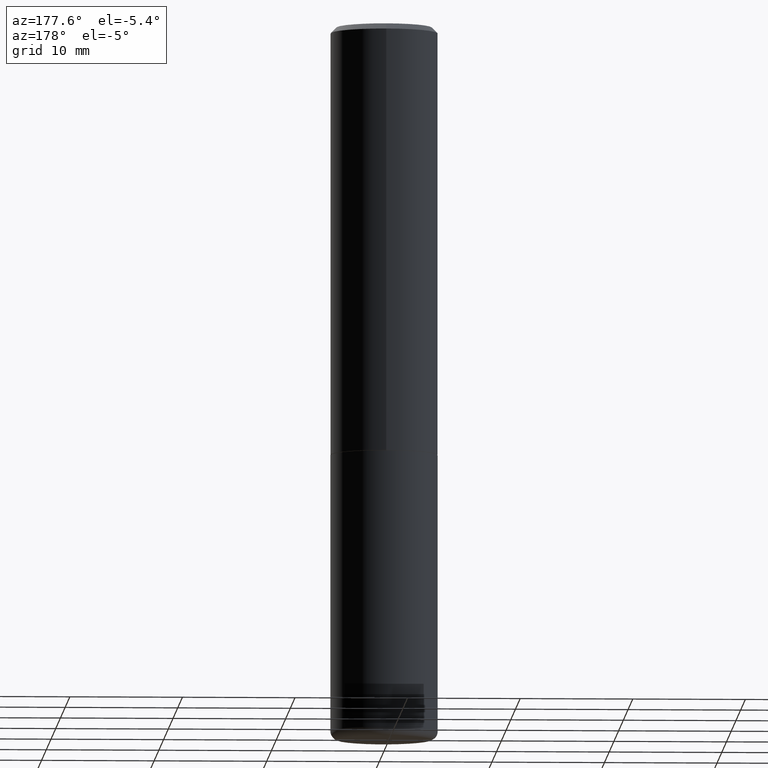
[diagram: clean part render]
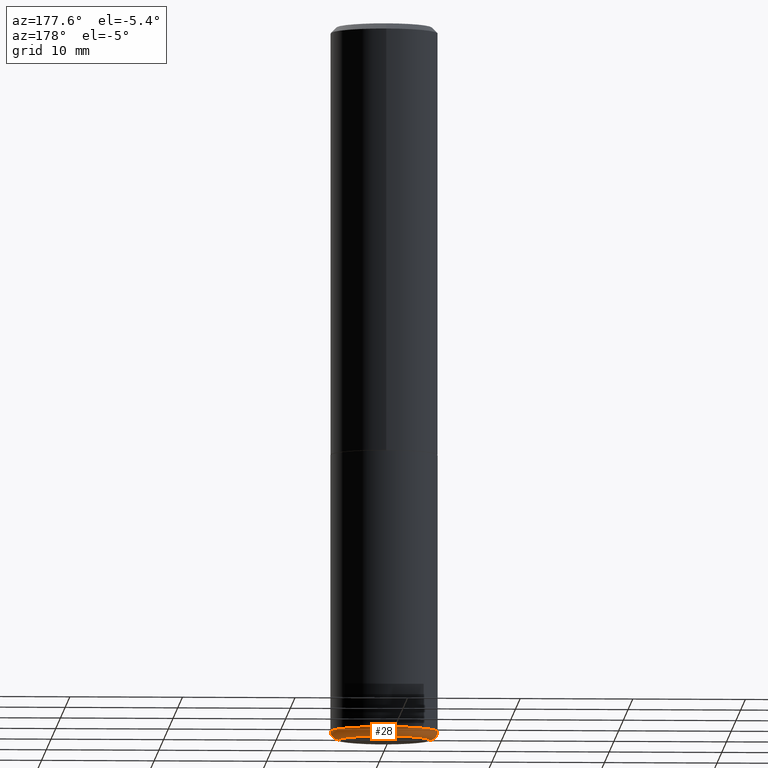
[diagram: same view with one face highlighted and labeled with its STEP entity id]
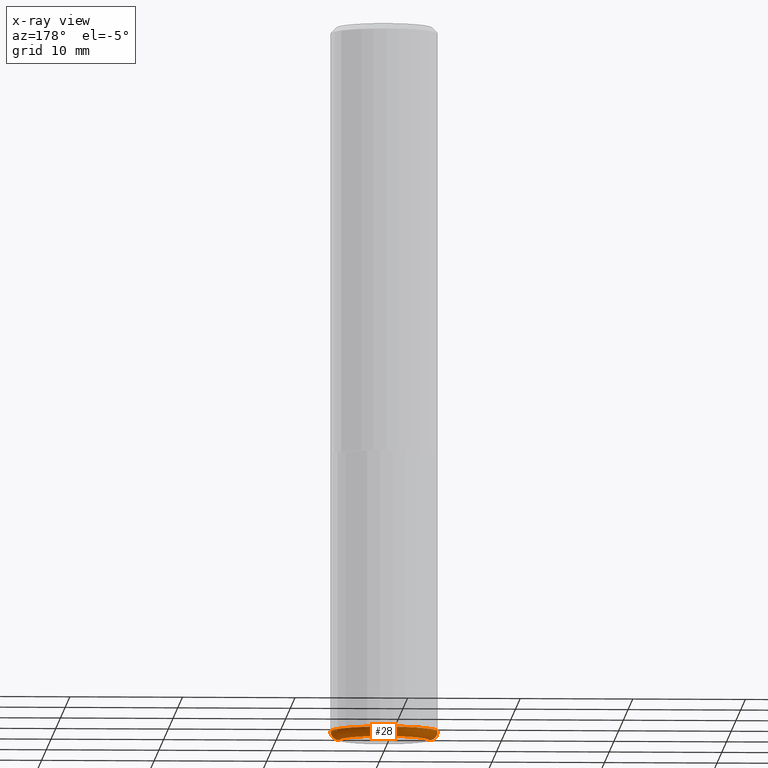
[diagram: x-ray of the same camera — body ghosted, the highlighted face saturated]
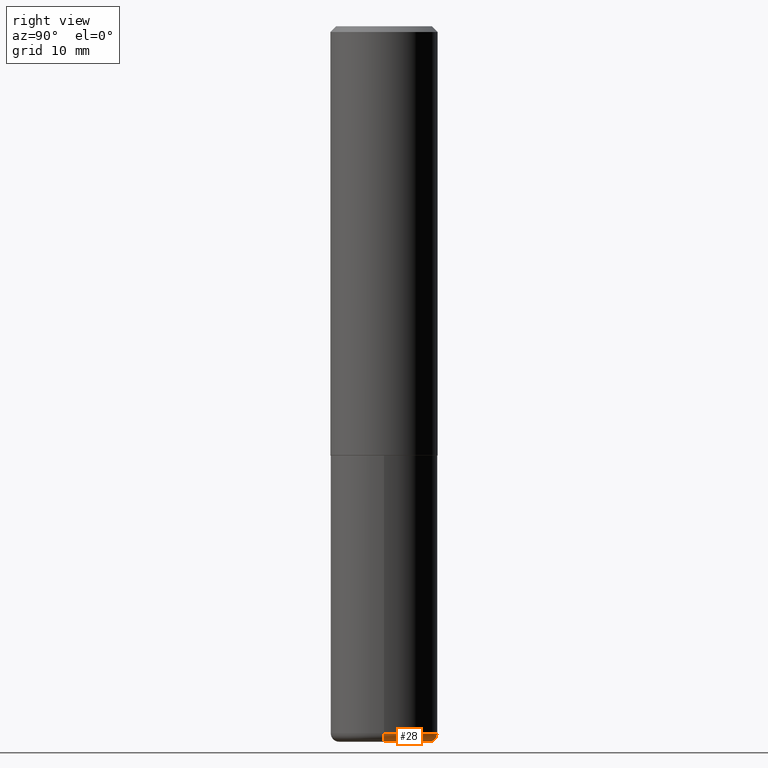
[diagram: same view with one face highlighted and labeled with its STEP entity id]
A machine part, auxiliary view. The second image highlights one B-rep face of the part: STEP entity #28.
The next image is the same camera in x-ray: the body ghosted, the highlighted face saturated — about 0% of this face is hidden behind the body in this view.
A second angle (right view) of the same face is appended — the face is thin or edge-on in the first view.
In plain terms, the highlighted toroidal blend (fillet) surface has major radius 4.0005 mm and minor (blend) radius 0.762 mm.
Its self-contained STEP definition (entity closure, byte-faithful):
#19 = CIRCLE ( 'NONE', #246, 0.03000000000000025910 ) ;
#25 = AXIS2_PLACEMENT_3D ( 'NONE', #298, #395, #79 ) ;
#28 = ADVANCED_FACE ( 'NONE', ( #311 ), #113, .T. ) ;
#41 = EDGE_LOOP ( 'NONE', ( #141, #46, #330, #197 ) ) ;
#46 = ORIENTED_EDGE ( 'NONE', *, *, #288, .T. ) ;
#61 = DIRECTION ( 'NONE',  ( -6.982962677686266711E-15, -1.000000000000000000, 3.491481338843145583E-15 ) ) ;
#79 = DIRECTION ( 'NONE',  ( 1.000000000000000000, -6.982962677686267499E-15, 0.000000000000000000 ) ) ;
#87 = CIRCLE ( 'NONE', #25, 0.1575000000000000289 ) ;
#97 = DIRECTION ( 'NONE',  ( 1.000000000000000000, -6.982962677686265922E-15, 0.000000000000000000 ) ) ;
#103 = DIRECTION ( 'NONE',  ( 7.105427357601001859E-15, 1.000000000000000000, -3.491481338843145583E-15 ) ) ;
#113 = TOROIDAL_SURFACE ( 'NONE', #270, 0.1575000000000000289, 0.03000000000000025910 ) ;
#141 = ORIENTED_EDGE ( 'NONE', *, *, #401, .T. ) ;
#168 = EDGE_CURVE ( 'NONE', #239, #385, #19, .T. ) ;
#170 = VERTEX_POINT ( 'NONE', #175 ) ;
#175 = CARTESIAN_POINT ( 'NONE',  ( -0.1575000000000000289, -7.450644907839043165E-15, -2.500000000000000444 ) ) ;
#197 = ORIENTED_EDGE ( 'NONE', *, *, #168, .F. ) ;
#239 = VERTEX_POINT ( 'NONE', #258 ) ;
#243 = CIRCLE ( 'NONE', #284, 0.1875000000000000555 ) ;
#246 = AXIS2_PLACEMENT_3D ( 'NONE', #316, #61, #382 ) ;
#252 = CARTESIAN_POINT ( 'NONE',  ( 6.040307951277287977E-29, -8.623958906942569995E-15, -2.470000000000000195 ) ) ;
#256 = CARTESIAN_POINT ( 'NONE',  ( -0.1575000000000000289, -7.504854098120412392E-15, -2.470000000000000195 ) ) ;
#258 = CARTESIAN_POINT ( 'NONE',  ( 0.1575000000000000289, -9.828519968843453212E-15, -2.500000000000000444 ) ) ;
#267 = EDGE_CURVE ( 'NONE', #385, #338, #243, .T. ) ;
#270 = AXIS2_PLACEMENT_3D ( 'NONE', #412, #317, #381 ) ;
#271 = CIRCLE ( 'NONE', #314, 0.03000000000000025910 ) ;
#284 = AXIS2_PLACEMENT_3D ( 'NONE', #252, #387, #97 ) ;
#288 = EDGE_CURVE ( 'NONE', #170, #338, #271, .T. ) ;
#295 = CARTESIAN_POINT ( 'NONE',  ( 0.1875000000000001943, -9.933264409008746581E-15, -2.470000000000000195 ) ) ;
#298 = CARTESIAN_POINT ( 'NONE',  ( 6.113672015462842613E-29, -8.728703347107866520E-15, -2.500000000000000444 ) ) ;
#311 = FACE_OUTER_BOUND ( 'NONE', #41, .T. ) ;
#314 = AXIS2_PLACEMENT_3D ( 'NONE', #256, #103, #398 ) ;
#316 = CARTESIAN_POINT ( 'NONE',  ( 0.1575000000000000289, -9.723775528678158264E-15, -2.470000000000000195 ) ) ;
#317 = DIRECTION ( 'NONE',  ( -2.445468806185136597E-29, 3.491481338843145583E-15, 1.000000000000000000 ) ) ;
#324 = CARTESIAN_POINT ( 'NONE',  ( -0.1875000000000001943, -7.291691277392382147E-15, -2.470000000000000195 ) ) ;
#330 = ORIENTED_EDGE ( 'NONE', *, *, #267, .F. ) ;
#338 = VERTEX_POINT ( 'NONE', #324 ) ;
#381 = DIRECTION ( 'NONE',  ( 1.000000000000000000, -6.982962677686267499E-15, 4.883557194083113462E-29 ) ) ;
#382 = DIRECTION ( 'NONE',  ( 1.000000000000000000, -6.982962677686273021E-15, 0.000000000000000000 ) ) ;
#385 = VERTEX_POINT ( 'NONE', #295 ) ;
#387 = DIRECTION ( 'NONE',  ( -2.445468806185136597E-29, 3.491481338843145583E-15, 1.000000000000000000 ) ) ;
#395 = DIRECTION ( 'NONE',  ( -2.445468806185136597E-29, 3.491481338843145583E-15, 1.000000000000000000 ) ) ;
#398 = DIRECTION ( 'NONE',  ( -1.000000000000000000, 7.105427357600994759E-15, 0.000000000000000000 ) ) ;
#401 = EDGE_CURVE ( 'NONE', #239, #170, #87, .T. ) ;
#412 = CARTESIAN_POINT ( 'NONE',  ( 6.040307951277287977E-29, -8.623958906942569995E-15, -2.470000000000000195 ) ) ;